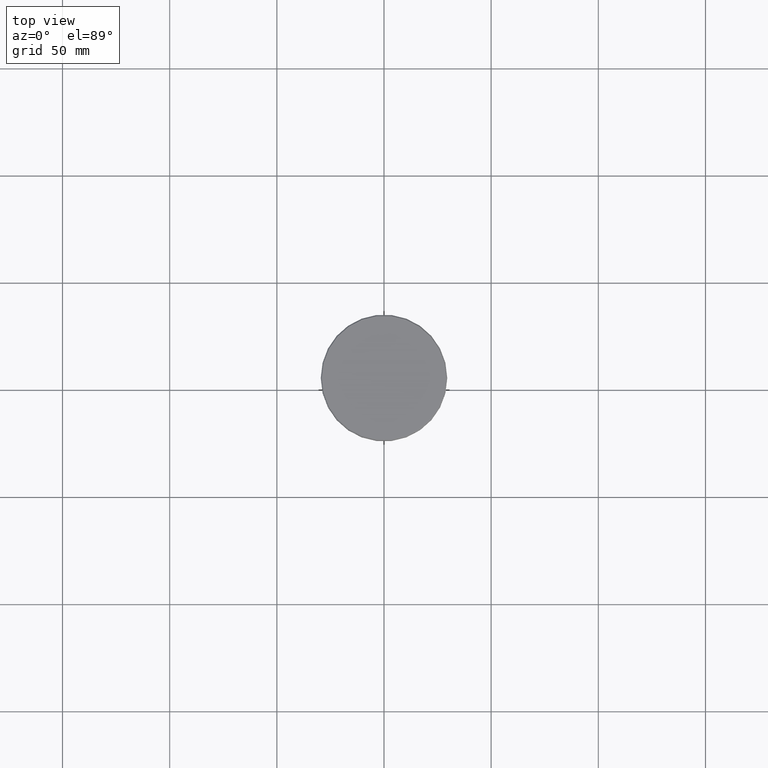
[diagram: clean part render]
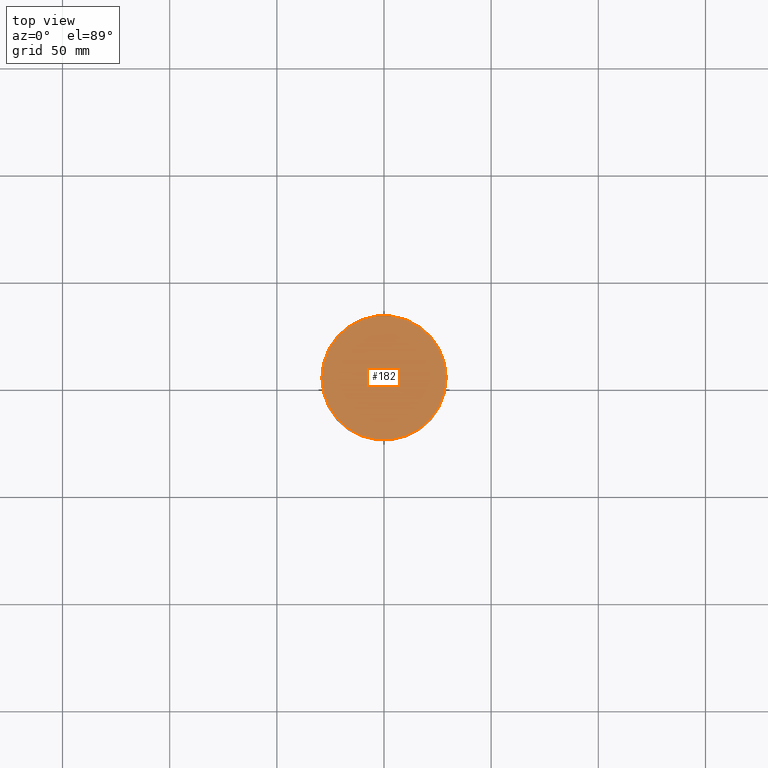
[diagram: same view with one face highlighted and labeled with its STEP entity id]
A machine part, top view. The second image highlights one B-rep face of the part: STEP entity #182.
In plain terms, the highlighted planar face has unit normal (0, -0, 1).
Its self-contained STEP definition (entity closure, byte-faithful):
#85 = PLANE ( 'NONE',  #227 ) ;
#101 = EDGE_CURVE ( 'NONE', #1131, #974, #536, .T. ) ;
#165 = DIRECTION ( 'NONE',  ( -0.000000000000000000, -0.000000000000000000, 1.000000000000000000 ) ) ;
#182 = ADVANCED_FACE ( 'NONE', ( #903 ), #85, .T. ) ;
#203 = EDGE_CURVE ( 'NONE', #974, #1131, #267, .T. ) ;
#227 = AXIS2_PLACEMENT_3D ( 'NONE', #272, #278, #627 ) ;
#249 = AXIS2_PLACEMENT_3D ( 'NONE', #612, #165, #1001 ) ;
#266 = DIRECTION ( 'NONE',  ( -0.000000000000000000, -0.000000000000000000, 1.000000000000000000 ) ) ;
#267 = CIRCLE ( 'NONE', #249, 28.99999999999988631 ) ;
#271 = ORIENTED_EDGE ( 'NONE', *, *, #203, .T. ) ;
#272 = CARTESIAN_POINT ( 'NONE',  ( 0.000000000000000000, 0.000000000000000000, 0.000000000000000000 ) ) ;
#278 = DIRECTION ( 'NONE',  ( 0.000000000000000000, -0.000000000000000000, 1.000000000000000000 ) ) ;
#294 = ORIENTED_EDGE ( 'NONE', *, *, #101, .T. ) ;
#536 = CIRCLE ( 'NONE', #1023, 28.99999999999988631 ) ;
#565 = DIRECTION ( 'NONE',  ( 1.000000000000000000, 0.000000000000000000, 0.000000000000000000 ) ) ;
#612 = CARTESIAN_POINT ( 'NONE',  ( 0.000000000000000000, 0.000000000000000000, 0.000000000000000000 ) ) ;
#627 = DIRECTION ( 'NONE',  ( 1.000000000000000000, 0.000000000000000000, 0.000000000000000000 ) ) ;
#665 = CARTESIAN_POINT ( 'NONE',  ( 28.99999999999988631, 3.582091887506000717E-15, 0.000000000000000000 ) ) ;
#746 = CARTESIAN_POINT ( 'NONE',  ( -28.99999999999988631, 0.000000000000000000, 0.000000000000000000 ) ) ;
#778 = EDGE_LOOP ( 'NONE', ( #294, #271 ) ) ;
#903 = FACE_OUTER_BOUND ( 'NONE', #778, .T. ) ;
#974 = VERTEX_POINT ( 'NONE', #665 ) ;
#1001 = DIRECTION ( 'NONE',  ( 1.000000000000000000, 0.000000000000000000, 0.000000000000000000 ) ) ;
#1023 = AXIS2_PLACEMENT_3D ( 'NONE', #1076, #266, #565 ) ;
#1076 = CARTESIAN_POINT ( 'NONE',  ( 0.000000000000000000, 0.000000000000000000, 0.000000000000000000 ) ) ;
#1131 = VERTEX_POINT ( 'NONE', #746 ) ;